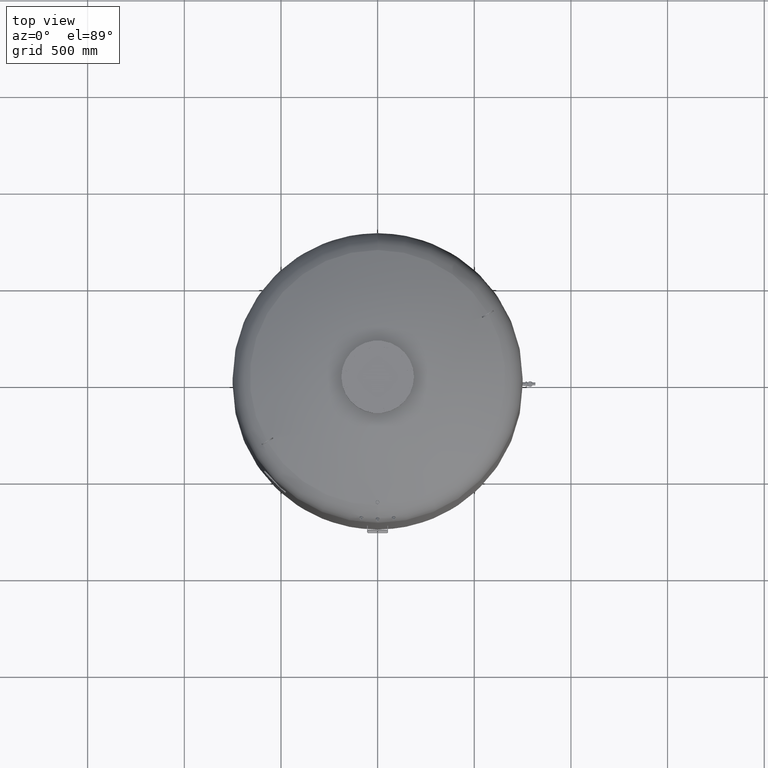
[diagram: clean part render]
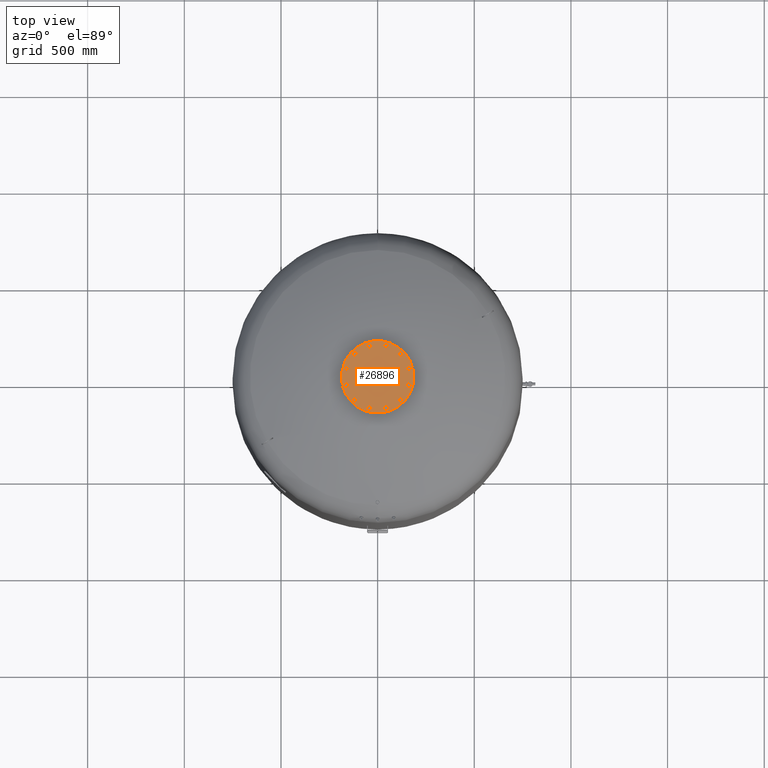
[diagram: same view with one face highlighted and labeled with its STEP entity id]
A machine part, top view. The second image highlights one B-rep face of the part: STEP entity #26896.
In plain terms, the highlighted planar face has unit normal (0, 0, 1).
Its self-contained STEP definition (entity closure, byte-faithful):
#19134=CARTESIAN_POINT('',(-187.500000000000000,0.0,3081.0));
#19135=VERTEX_POINT('',#19134);
#19151=CARTESIAN_POINT('',(187.500000000000000,-2.296137E-014,3081.0));
#19152=VERTEX_POINT('',#19151);
#19159=CARTESIAN_POINT('',(0.0,0.0,3081.0));
#19160=DIRECTION('',(0.0,0.0,-1.0));
#19161=DIRECTION('',(-1.0,0.0,0.0));
#19162=AXIS2_PLACEMENT_3D('',#19159,#19160,#19161);
#19163=CIRCLE('',#19162,187.500000000000000);
#19164=EDGE_CURVE('',#19152,#19135,#19163,.T.);
#24390=CARTESIAN_POINT('',(157.729139400922860,30.104983413641008,3081.0));
#24391=VERTEX_POINT('',#24390);
#24392=CARTESIAN_POINT('',(148.288440171855850,40.247625971983268,3081.0));
#24393=VERTEX_POINT('',#24392);
#24394=CARTESIAN_POINT('',(157.729139400922860,30.104983413641008,3081.0));
#24395=DIRECTION('',(-0.681323780155013,0.731982176419128,0.0));
#24396=VECTOR('',#24395,13.856406460551090);
#24397=LINE('',#24394,#24396);
#24398=EDGE_CURVE('',#24391,#24393,#24397,.T.);
#24430=CARTESIAN_POINT('',(171.233275132485970,33.209547496330110,3081.0));
#24431=VERTEX_POINT('',#24430);
#24432=CARTESIAN_POINT('',(171.233275132485970,33.209547496330110,3081.0));
#24433=DIRECTION('',(-0.974577049973894,-0.224052613607123,0.0));
#24434=VECTOR('',#24433,13.856406460551119);
#24435=LINE('',#24432,#24434);
#24436=EDGE_CURVE('',#24431,#24391,#24435,.T.);
#24461=CARTESIAN_POINT('',(175.296711634982050,46.456754137361422,3081.0));
#24462=VERTEX_POINT('',#24461);
#24463=CARTESIAN_POINT('',(175.296711634982050,46.456754137361422,3081.0));
#24464=DIRECTION('',(-0.293253269818881,-0.956034790026249,0.0));
#24465=VECTOR('',#24464,13.856406460551076);
#24466=LINE('',#24463,#24465);
#24467=EDGE_CURVE('',#24462,#24431,#24466,.T.);
#24492=CARTESIAN_POINT('',(152.351876674351930,53.494832613014587,3081.0));
#24493=VERTEX_POINT('',#24492);
#24494=CARTESIAN_POINT('',(148.288440171855850,40.247625971983268,3081.0));
#24495=DIRECTION('',(0.293253269818881,0.956034790026249,0.0));
#24496=VECTOR('',#24495,13.856406460551083);
#24497=LINE('',#24494,#24496);
#24498=EDGE_CURVE('',#24393,#24493,#24497,.T.);
#24523=CARTESIAN_POINT('',(165.856012405915040,56.599396695703689,3081.0));
#24524=VERTEX_POINT('',#24523);
#24525=CARTESIAN_POINT('',(152.351876674351930,53.494832613014587,3081.0));
#24526=DIRECTION('',(0.974577049973894,0.224052613607123,0.0));
#24527=VECTOR('',#24526,13.856406460551119);
#24528=LINE('',#24525,#24527);
#24529=EDGE_CURVE('',#24493,#24524,#24528,.T.);
#24554=CARTESIAN_POINT('',(165.856012405915040,56.599396695703689,3081.0));
#24555=DIRECTION('',(0.681323780155012,-0.731982176419129,0.0));
#24556=VECTOR('',#24555,13.856406460551096);
#24557=LINE('',#24554,#24556);
#24558=EDGE_CURVE('',#24524,#24462,#24557,.T.);
#24590=CARTESIAN_POINT('',(121.544949931435720,104.936250117183760,3081.0));
#24591=VERTEX_POINT('',#24590);
#24592=CARTESIAN_POINT('',(108.297743290404380,108.999686619679820,3081.0));
#24593=VERTEX_POINT('',#24592);
#24594=CARTESIAN_POINT('',(121.544949931435720,104.936250117183760,3081.0));
#24595=DIRECTION('',(-0.956034790026250,0.293253269818880,0.0));
#24596=VECTOR('',#24595,13.856406460551101);
#24597=LINE('',#24594,#24596);
#24598=EDGE_CURVE('',#24591,#24593,#24597,.T.);
#24630=CARTESIAN_POINT('',(131.687592489777960,114.376949346250780,3081.0));
#24631=VERTEX_POINT('',#24630);
#24632=CARTESIAN_POINT('',(131.687592489777960,114.376949346250780,3081.0));
#24633=DIRECTION('',(-0.731982176419127,-0.681323780155014,0.0));
#24634=VECTOR('',#24633,13.856406460551080);
#24635=LINE('',#24632,#24634);
#24636=EDGE_CURVE('',#24631,#24591,#24635,.T.);
#24661=CARTESIAN_POINT('',(128.583028407088880,127.881085077813880,3081.0));
#24662=VERTEX_POINT('',#24661);
#24663=CARTESIAN_POINT('',(128.583028407088880,127.881085077813880,3081.0));
#24664=DIRECTION('',(0.224052613607122,-0.974577049973894,0.0));
#24665=VECTOR('',#24664,13.856406460551099);
#24666=LINE('',#24663,#24665);
#24667=EDGE_CURVE('',#24662,#24631,#24666,.T.);
#24692=CARTESIAN_POINT('',(105.193179207715300,122.503822351242900,3081.0));
#24693=VERTEX_POINT('',#24692);
#24694=CARTESIAN_POINT('',(108.297743290404380,108.999686619679820,3081.0));
#24695=DIRECTION('',(-0.224052613607122,0.974577049973894,0.0));
#24696=VECTOR('',#24695,13.856406460551087);
#24697=LINE('',#24694,#24696);
#24698=EDGE_CURVE('',#24593,#24693,#24697,.T.);
#24723=CARTESIAN_POINT('',(115.335821766057560,131.944521580309950,3081.0));
#24724=VERTEX_POINT('',#24723);
#24725=CARTESIAN_POINT('',(105.193179207715300,122.503822351242900,3081.0));
#24726=DIRECTION('',(0.731982176419127,0.681323780155014,0.0));
#24727=VECTOR('',#24726,13.856406460551121);
#24728=LINE('',#24725,#24727);
#24729=EDGE_CURVE('',#24693,#24724,#24728,.T.);
#24754=CARTESIAN_POINT('',(115.335821766057560,131.944521580309950,3081.0));
#24755=DIRECTION('',(0.956034790026249,-0.293253269818881,0.0));
#24756=VECTOR('',#24755,13.856406460551076);
#24757=LINE('',#24754,#24756);
#24758=EDGE_CURVE('',#24724,#24662,#24757,.T.);
#24790=CARTESIAN_POINT('',(52.792889283739193,151.649933345076730,3081.0));
#24791=VERTEX_POINT('',#24790);
#24792=CARTESIAN_POINT('',(39.288753552176118,148.545369262387680,3081.0));
#24793=VERTEX_POINT('',#24792);
#24794=CARTESIAN_POINT('',(52.792889283739193,151.649933345076730,3081.0));
#24795=DIRECTION('',(-0.974577049973894,-0.224052613607120,0.0));
#24796=VECTOR('',#24795,13.856406460551073);
#24797=LINE('',#24794,#24796);
#24798=EDGE_CURVE('',#24791,#24793,#24797,.T.);
#24830=CARTESIAN_POINT('',(56.856325786235274,164.897139986108100,3081.0));
#24831=VERTEX_POINT('',#24830);
#24832=CARTESIAN_POINT('',(56.856325786235274,164.897139986108100,3081.0));
#24833=DIRECTION('',(-0.293253269818881,-0.956034790026249,0.0));
#24834=VECTOR('',#24833,13.856406460551133);
#24835=LINE('',#24832,#24834);
#24836=EDGE_CURVE('',#24831,#24791,#24835,.T.);
#24861=CARTESIAN_POINT('',(47.415626557168267,175.039782544450330,3081.0));
#24862=VERTEX_POINT('',#24861);
#24863=CARTESIAN_POINT('',(47.415626557168267,175.039782544450330,3081.0));
#24864=DIRECTION('',(0.681323780155014,-0.731982176419128,0.0));
#24865=VECTOR('',#24864,13.856406460551069);
#24866=LINE('',#24863,#24865);
#24867=EDGE_CURVE('',#24862,#24831,#24866,.T.);
#24892=CARTESIAN_POINT('',(29.848054323109103,158.688011820729910,3081.0));
#24893=VERTEX_POINT('',#24892);
#24894=CARTESIAN_POINT('',(39.288753552176118,148.545369262387680,3081.0));
#24895=DIRECTION('',(-0.681323780155014,0.731982176419127,0.0));
#24896=VECTOR('',#24895,13.856406460551076);
#24897=LINE('',#24894,#24896);
#24898=EDGE_CURVE('',#24793,#24893,#24897,.T.);
#24923=CARTESIAN_POINT('',(33.911490825605156,171.935218461761250,3081.0));
#24924=VERTEX_POINT('',#24923);
#24925=CARTESIAN_POINT('',(29.848054323109103,158.688011820729910,3081.0));
#24926=DIRECTION('',(0.293253269818879,0.956034790026250,0.0));
#24927=VECTOR('',#24926,13.856406460551097);
#24928=LINE('',#24925,#24927);
#24929=EDGE_CURVE('',#24893,#24924,#24928,.T.);
#24954=CARTESIAN_POINT('',(33.911490825605156,171.935218461761250,3081.0));
#24955=DIRECTION('',(0.974577049973894,0.224052613607121,0.0));
#24956=VECTOR('',#24955,13.856406460551113);
#24957=LINE('',#24954,#24956);
#24958=EDGE_CURVE('',#24924,#24862,#24957,.T.);
#24990=CARTESIAN_POINT('',(-30.104983413641008,157.729139400922860,3081.0));
#24991=VERTEX_POINT('',#24990);
#24992=CARTESIAN_POINT('',(-40.247625971983268,148.288440171855850,3081.0));
#24993=VERTEX_POINT('',#24992);
#24994=CARTESIAN_POINT('',(-30.104983413641008,157.729139400922860,3081.0));
#24995=DIRECTION('',(-0.731982176419128,-0.681323780155013,0.0));
#24996=VECTOR('',#24995,13.856406460551090);
#24997=LINE('',#24994,#24996);
#24998=EDGE_CURVE('',#24991,#24993,#24997,.T.);
#25030=CARTESIAN_POINT('',(-33.209547496330110,171.233275132485970,3081.0));
#25031=VERTEX_POINT('',#25030);
#25032=CARTESIAN_POINT('',(-33.209547496330110,171.233275132485970,3081.0));
#25033=DIRECTION('',(0.224052613607123,-0.974577049973894,0.0));
#25034=VECTOR('',#25033,13.856406460551119);
#25035=LINE('',#25032,#25034);
#25036=EDGE_CURVE('',#25031,#24991,#25035,.T.);
#25061=CARTESIAN_POINT('',(-46.456754137361422,175.296711634982050,3081.0));
#25062=VERTEX_POINT('',#25061);
#25063=CARTESIAN_POINT('',(-46.456754137361422,175.296711634982050,3081.0));
#25064=DIRECTION('',(0.956034790026249,-0.293253269818881,0.0));
#25065=VECTOR('',#25064,13.856406460551076);
#25066=LINE('',#25063,#25065);
#25067=EDGE_CURVE('',#25062,#25031,#25066,.T.);
#25092=CARTESIAN_POINT('',(-53.494832613014587,152.351876674351930,3081.0));
#25093=VERTEX_POINT('',#25092);
#25094=CARTESIAN_POINT('',(-40.247625971983268,148.288440171855850,3081.0));
#25095=DIRECTION('',(-0.956034790026249,0.293253269818881,0.0));
#25096=VECTOR('',#25095,13.856406460551083);
#25097=LINE('',#25094,#25096);
#25098=EDGE_CURVE('',#24993,#25093,#25097,.T.);
#25123=CARTESIAN_POINT('',(-56.599396695703689,165.856012405915040,3081.0));
#25124=VERTEX_POINT('',#25123);
#25125=CARTESIAN_POINT('',(-53.494832613014587,152.351876674351930,3081.0));
#25126=DIRECTION('',(-0.224052613607123,0.974577049973894,0.0));
#25127=VECTOR('',#25126,13.856406460551119);
#25128=LINE('',#25125,#25127);
#25129=EDGE_CURVE('',#25093,#25124,#25128,.T.);
#25154=CARTESIAN_POINT('',(-56.599396695703689,165.856012405915040,3081.0));
#25155=DIRECTION('',(0.731982176419129,0.681323780155012,0.0));
#25156=VECTOR('',#25155,13.856406460551096);
#25157=LINE('',#25154,#25156);
#25158=EDGE_CURVE('',#25124,#25062,#25157,.T.);
#25190=CARTESIAN_POINT('',(-104.936250117183700,121.544949931435750,3081.0));
#25191=VERTEX_POINT('',#25190);
#25192=CARTESIAN_POINT('',(-108.999686619679760,108.297743290404440,3081.0));
#25193=VERTEX_POINT('',#25192);
#25194=CARTESIAN_POINT('',(-104.936250117183700,121.544949931435750,3081.0));
#25195=DIRECTION('',(-0.293253269818880,-0.956034790026249,0.0));
#25196=VECTOR('',#25195,13.856406460551073);
#25197=LINE('',#25194,#25196);
#25198=EDGE_CURVE('',#25191,#25193,#25197,.T.);
#25230=CARTESIAN_POINT('',(-114.376949346250730,131.687592489778010,3081.0));
#25231=VERTEX_POINT('',#25230);
#25232=CARTESIAN_POINT('',(-114.376949346250730,131.687592489778010,3081.0));
#25233=DIRECTION('',(0.681323780155013,-0.731982176419128,0.0));
#25234=VECTOR('',#25233,13.856406460551101);
#25235=LINE('',#25232,#25234);
#25236=EDGE_CURVE('',#25231,#25191,#25235,.T.);
#25261=CARTESIAN_POINT('',(-127.881085077813810,128.583028407088930,3081.0));
#25262=VERTEX_POINT('',#25261);
#25263=CARTESIAN_POINT('',(-127.881085077813810,128.583028407088930,3081.0));
#25264=DIRECTION('',(0.974577049973894,0.224052613607122,0.0));
#25265=VECTOR('',#25264,13.856406460551087);
#25266=LINE('',#25263,#25265);
#25267=EDGE_CURVE('',#25262,#25231,#25266,.T.);
#25292=CARTESIAN_POINT('',(-122.503822351242850,105.193179207715360,3081.0));
#25293=VERTEX_POINT('',#25292);
#25294=CARTESIAN_POINT('',(-108.999686619679760,108.297743290404440,3081.0));
#25295=DIRECTION('',(-0.974577049973894,-0.224052613607122,0.0));
#25296=VECTOR('',#25295,13.856406460551087);
#25297=LINE('',#25294,#25296);
#25298=EDGE_CURVE('',#25193,#25293,#25297,.T.);
#25323=CARTESIAN_POINT('',(-131.944521580309900,115.335821766057620,3081.0));
#25324=VERTEX_POINT('',#25323);
#25325=CARTESIAN_POINT('',(-122.503822351242850,105.193179207715360,3081.0));
#25326=DIRECTION('',(-0.681323780155014,0.731982176419127,0.0));
#25327=VECTOR('',#25326,13.856406460551121);
#25328=LINE('',#25325,#25327);
#25329=EDGE_CURVE('',#25293,#25324,#25328,.T.);
#25354=CARTESIAN_POINT('',(-131.944521580309900,115.335821766057620,3081.0));
#25355=DIRECTION('',(0.293253269818882,0.956034790026249,0.0));
#25356=VECTOR('',#25355,13.856406460551081);
#25357=LINE('',#25354,#25356);
#25358=EDGE_CURVE('',#25324,#25262,#25357,.T.);
#25390=CARTESIAN_POINT('',(-151.649933345076730,52.792889283739214,3081.0));
#25391=VERTEX_POINT('',#25390);
#25392=CARTESIAN_POINT('',(-148.545369262387650,39.288753552176125,3081.0));
#25393=VERTEX_POINT('',#25392);
#25394=CARTESIAN_POINT('',(-151.649933345076730,52.792889283739214,3081.0));
#25395=DIRECTION('',(0.224052613607122,-0.974577049973894,0.0));
#25396=VECTOR('',#25395,13.856406460551092);
#25397=LINE('',#25394,#25396);
#25398=EDGE_CURVE('',#25391,#25393,#25397,.T.);
#25430=CARTESIAN_POINT('',(-164.897139986108100,56.856325786235296,3081.0));
#25431=VERTEX_POINT('',#25430);
#25432=CARTESIAN_POINT('',(-164.897139986108100,56.856325786235296,3081.0));
#25433=DIRECTION('',(0.956034790026249,-0.293253269818881,0.0));
#25434=VECTOR('',#25433,13.856406460551133);
#25435=LINE('',#25432,#25434);
#25436=EDGE_CURVE('',#25431,#25391,#25435,.T.);
#25461=CARTESIAN_POINT('',(-175.039782544450300,47.415626557168260,3081.0));
#25462=VERTEX_POINT('',#25461);
#25463=CARTESIAN_POINT('',(-175.039782544450300,47.415626557168260,3081.0));
#25464=DIRECTION('',(0.731982176419126,0.681323780155016,0.0));
#25465=VECTOR('',#25464,13.856406460551069);
#25466=LINE('',#25463,#25465);
#25467=EDGE_CURVE('',#25462,#25431,#25466,.T.);
#25492=CARTESIAN_POINT('',(-158.688011820729910,29.848054323109110,3081.0));
#25493=VERTEX_POINT('',#25492);
#25494=CARTESIAN_POINT('',(-148.545369262387650,39.288753552176125,3081.0));
#25495=DIRECTION('',(-0.731982176419128,-0.681323780155013,0.0));
#25496=VECTOR('',#25495,13.856406460551096);
#25497=LINE('',#25494,#25496);
#25498=EDGE_CURVE('',#25393,#25493,#25497,.T.);
#25523=CARTESIAN_POINT('',(-171.935218461761250,33.911490825605171,3081.0));
#25524=VERTEX_POINT('',#25523);
#25525=CARTESIAN_POINT('',(-158.688011820729910,29.848054323109110,3081.0));
#25526=DIRECTION('',(-0.956034790026250,0.293253269818880,0.0));
#25527=VECTOR('',#25526,13.856406460551101);
#25528=LINE('',#25525,#25527);
#25529=EDGE_CURVE('',#25493,#25524,#25528,.T.);
#25554=CARTESIAN_POINT('',(-171.935218461761250,33.911490825605171,3081.0));
#25555=DIRECTION('',(-0.224052613607120,0.974577049973894,0.0));
#25556=VECTOR('',#25555,13.856406460551087);
#25557=LINE('',#25554,#25556);
#25558=EDGE_CURVE('',#25524,#25462,#25557,.T.);
#25590=CARTESIAN_POINT('',(-157.729139400922860,-30.104983413640987,3081.0));
#25591=VERTEX_POINT('',#25590);
#25592=CARTESIAN_POINT('',(-148.288440171855850,-40.247625971983247,3081.0));
#25593=VERTEX_POINT('',#25592);
#25594=CARTESIAN_POINT('',(-157.729139400922860,-30.104983413640987,3081.0));
#25595=DIRECTION('',(0.681323780155013,-0.731982176419128,0.0));
#25596=VECTOR('',#25595,13.856406460551090);
#25597=LINE('',#25594,#25596);
#25598=EDGE_CURVE('',#25591,#25593,#25597,.T.);
#25630=CARTESIAN_POINT('',(-171.233275132486000,-33.209547496330096,3081.0));
#25631=VERTEX_POINT('',#25630);
#25632=CARTESIAN_POINT('',(-171.233275132486000,-33.209547496330096,3081.0));
#25633=DIRECTION('',(0.974577049973894,0.224052613607123,0.0));
#25634=VECTOR('',#25633,13.856406460551147);
#25635=LINE('',#25632,#25634);
#25636=EDGE_CURVE('',#25631,#25591,#25635,.T.);
#25661=CARTESIAN_POINT('',(-175.296711634982050,-46.456754137361401,3081.0));
#25662=VERTEX_POINT('',#25661);
#25663=CARTESIAN_POINT('',(-175.296711634982050,-46.456754137361401,3081.0));
#25664=DIRECTION('',(0.293253269818880,0.956034790026250,0.0));
#25665=VECTOR('',#25664,13.856406460551062);
#25666=LINE('',#25663,#25665);
#25667=EDGE_CURVE('',#25662,#25631,#25666,.T.);
#25692=CARTESIAN_POINT('',(-152.351876674351960,-53.494832613014580,3081.0));
#25693=VERTEX_POINT('',#25692);
#25694=CARTESIAN_POINT('',(-148.288440171855850,-40.247625971983247,3081.0));
#25695=DIRECTION('',(-0.293253269818883,-0.956034790026249,0.0));
#25696=VECTOR('',#25695,13.856406460551106);
#25697=LINE('',#25694,#25696);
#25698=EDGE_CURVE('',#25593,#25693,#25697,.T.);
#25723=CARTESIAN_POINT('',(-165.856012405915070,-56.599396695703646,3081.0));
#25724=VERTEX_POINT('',#25723);
#25725=CARTESIAN_POINT('',(-152.351876674351960,-53.494832613014580,3081.0));
#25726=DIRECTION('',(-0.974577049973894,-0.224052613607121,0.0));
#25727=VECTOR('',#25726,13.856406460551110);
#25728=LINE('',#25725,#25727);
#25729=EDGE_CURVE('',#25693,#25724,#25728,.T.);
#25754=CARTESIAN_POINT('',(-165.856012405915070,-56.599396695703646,3081.0));
#25755=DIRECTION('',(-0.681323780155012,0.731982176419129,0.0));
#25756=VECTOR('',#25755,13.856406460551062);
#25757=LINE('',#25754,#25756);
#25758=EDGE_CURVE('',#25724,#25662,#25757,.T.);
#25790=CARTESIAN_POINT('',(-121.544949931435750,-104.936250117183680,3081.0));
#25791=VERTEX_POINT('',#25790);
#25792=CARTESIAN_POINT('',(-108.297743290404440,-108.999686619679760,3081.0));
#25793=VERTEX_POINT('',#25792);
#25794=CARTESIAN_POINT('',(-121.544949931435750,-104.936250117183680,3081.0));
#25795=DIRECTION('',(0.956034790026249,-0.293253269818882,0.0));
#25796=VECTOR('',#25795,13.856406460551081);
#25797=LINE('',#25794,#25796);
#25798=EDGE_CURVE('',#25791,#25793,#25797,.T.);
#25830=CARTESIAN_POINT('',(-131.687592489778010,-114.376949346250730,3081.0));
#25831=VERTEX_POINT('',#25830);
#25832=CARTESIAN_POINT('',(-131.687592489778010,-114.376949346250730,3081.0));
#25833=DIRECTION('',(0.731982176419127,0.681323780155014,0.0));
#25834=VECTOR('',#25833,13.856406460551121);
#25835=LINE('',#25832,#25834);
#25836=EDGE_CURVE('',#25831,#25791,#25835,.T.);
#25861=CARTESIAN_POINT('',(-128.583028407088930,-127.881085077813790,3081.0));
#25862=VERTEX_POINT('',#25861);
#25863=CARTESIAN_POINT('',(-128.583028407088930,-127.881085077813790,3081.0));
#25864=DIRECTION('',(-0.224052613607122,0.974577049973894,0.0));
#25865=VECTOR('',#25864,13.856406460551071);
#25866=LINE('',#25863,#25865);
#25867=EDGE_CURVE('',#25862,#25831,#25866,.T.);
#25892=CARTESIAN_POINT('',(-105.193179207715360,-122.503822351242850,3081.0));
#25893=VERTEX_POINT('',#25892);
#25894=CARTESIAN_POINT('',(-108.297743290404440,-108.999686619679760,3081.0));
#25895=DIRECTION('',(0.224052613607122,-0.974577049973894,0.0));
#25896=VECTOR('',#25895,13.856406460551087);
#25897=LINE('',#25894,#25896);
#25898=EDGE_CURVE('',#25793,#25893,#25897,.T.);
#25923=CARTESIAN_POINT('',(-115.335821766057620,-131.944521580309900,3081.0));
#25924=VERTEX_POINT('',#25923);
#25925=CARTESIAN_POINT('',(-105.193179207715360,-122.503822351242850,3081.0));
#25926=DIRECTION('',(-0.731982176419127,-0.681323780155014,0.0));
#25927=VECTOR('',#25926,13.856406460551121);
#25928=LINE('',#25925,#25927);
#25929=EDGE_CURVE('',#25893,#25924,#25928,.T.);
#25954=CARTESIAN_POINT('',(-115.335821766057620,-131.944521580309900,3081.0));
#25955=DIRECTION('',(-0.956034790026249,0.293253269818883,0.0));
#25956=VECTOR('',#25955,13.856406460551085);
#25957=LINE('',#25954,#25956);
#25958=EDGE_CURVE('',#25924,#25862,#25957,.T.);
#25990=CARTESIAN_POINT('',(-52.792889283739228,-151.649933345076730,3081.0));
#25991=VERTEX_POINT('',#25990);
#25992=CARTESIAN_POINT('',(-39.288753552176132,-148.545369262387680,3081.0));
#25993=VERTEX_POINT('',#25992);
#25994=CARTESIAN_POINT('',(-52.792889283739228,-151.649933345076730,3081.0));
#25995=DIRECTION('',(0.974577049973894,0.224052613607120,0.0));
#25996=VECTOR('',#25995,13.856406460551094);
#25997=LINE('',#25994,#25996);
#25998=EDGE_CURVE('',#25991,#25993,#25997,.T.);
#26030=CARTESIAN_POINT('',(-56.856325786235296,-164.897139986108100,3081.0));
#26031=VERTEX_POINT('',#26030);
#26032=CARTESIAN_POINT('',(-56.856325786235296,-164.897139986108100,3081.0));
#26033=DIRECTION('',(0.293253269818880,0.956034790026250,0.0));
#26034=VECTOR('',#26033,13.856406460551129);
#26035=LINE('',#26032,#26034);
#26036=EDGE_CURVE('',#26031,#25991,#26035,.T.);
#26061=CARTESIAN_POINT('',(-47.415626557168281,-175.039782544450300,3081.0));
#26062=VERTEX_POINT('',#26061);
#26063=CARTESIAN_POINT('',(-47.415626557168281,-175.039782544450300,3081.0));
#26064=DIRECTION('',(-0.681323780155015,0.731982176419126,0.0));
#26065=VECTOR('',#26064,13.856406460551055);
#26066=LINE('',#26063,#26065);
#26067=EDGE_CURVE('',#26062,#26031,#26066,.T.);
#26092=CARTESIAN_POINT('',(-29.848054323109121,-158.688011820729910,3081.0));
#26093=VERTEX_POINT('',#26092);
#26094=CARTESIAN_POINT('',(-39.288753552176132,-148.545369262387680,3081.0));
#26095=DIRECTION('',(0.681323780155014,-0.731982176419127,0.0));
#26096=VECTOR('',#26095,13.856406460551073);
#26097=LINE('',#26094,#26096);
#26098=EDGE_CURVE('',#25993,#26093,#26097,.T.);
#26123=CARTESIAN_POINT('',(-33.911490825605199,-171.935218461761280,3081.0));
#26124=VERTEX_POINT('',#26123);
#26125=CARTESIAN_POINT('',(-29.848054323109121,-158.688011820729910,3081.0));
#26126=DIRECTION('',(-0.293253269818880,-0.956034790026249,0.0));
#26127=VECTOR('',#26126,13.856406460551133);
#26128=LINE('',#26125,#26127);
#26129=EDGE_CURVE('',#26093,#26124,#26128,.T.);
#26154=CARTESIAN_POINT('',(-33.911490825605199,-171.935218461761280,3081.0));
#26155=DIRECTION('',(-0.974577049973895,-0.224052613607118,0.0));
#26156=VECTOR('',#26155,13.856406460551074);
#26157=LINE('',#26154,#26156);
#26158=EDGE_CURVE('',#26124,#26062,#26157,.T.);
#26190=CARTESIAN_POINT('',(30.104983413640952,-157.729139400922890,3081.0));
#26191=VERTEX_POINT('',#26190);
#26192=CARTESIAN_POINT('',(40.247625971983211,-148.288440171855880,3081.0));
#26193=VERTEX_POINT('',#26192);
#26194=CARTESIAN_POINT('',(30.104983413640952,-157.729139400922890,3081.0));
#26195=DIRECTION('',(0.731982176419128,0.681323780155013,0.0));
#26196=VECTOR('',#26195,13.856406460551090);
#26197=LINE('',#26194,#26196);
#26198=EDGE_CURVE('',#26191,#26193,#26197,.T.);
#26230=CARTESIAN_POINT('',(33.209547496330039,-171.233275132486000,3081.0));
#26231=VERTEX_POINT('',#26230);
#26232=CARTESIAN_POINT('',(33.209547496330039,-171.233275132486000,3081.0));
#26233=DIRECTION('',(-0.224052613607122,0.974577049973894,0.0));
#26234=VECTOR('',#26233,13.856406460551115);
#26235=LINE('',#26232,#26234);
#26236=EDGE_CURVE('',#26231,#26191,#26235,.T.);
#26261=CARTESIAN_POINT('',(46.456754137361351,-175.296711634982070,3081.0));
#26262=VERTEX_POINT('',#26261);
#26263=CARTESIAN_POINT('',(46.456754137361351,-175.296711634982070,3081.0));
#26264=DIRECTION('',(-0.956034790026249,0.293253269818881,0.0));
#26265=VECTOR('',#26264,13.856406460551076);
#26266=LINE('',#26263,#26265);
#26267=EDGE_CURVE('',#26262,#26231,#26266,.T.);
#26292=CARTESIAN_POINT('',(53.494832613014523,-152.351876674351960,3081.0));
#26293=VERTEX_POINT('',#26292);
#26294=CARTESIAN_POINT('',(40.247625971983211,-148.288440171855880,3081.0));
#26295=DIRECTION('',(0.956034790026249,-0.293253269818881,0.0));
#26296=VECTOR('',#26295,13.856406460551076);
#26297=LINE('',#26294,#26296);
#26298=EDGE_CURVE('',#26193,#26293,#26297,.T.);
#26323=CARTESIAN_POINT('',(56.599396695703625,-165.856012405915070,3081.0));
#26324=VERTEX_POINT('',#26323);
#26325=CARTESIAN_POINT('',(53.494832613014523,-152.351876674351960,3081.0));
#26326=DIRECTION('',(0.224052613607123,-0.974577049973894,0.0));
#26327=VECTOR('',#26326,13.856406460551119);
#26328=LINE('',#26325,#26327);
#26329=EDGE_CURVE('',#26293,#26324,#26328,.T.);
#26354=CARTESIAN_POINT('',(56.599396695703625,-165.856012405915070,3081.0));
#26355=DIRECTION('',(-0.731982176419129,-0.681323780155012,0.0));
#26356=VECTOR('',#26355,13.856406460551101);
#26357=LINE('',#26354,#26356);
#26358=EDGE_CURVE('',#26324,#26262,#26357,.T.);
#26390=CARTESIAN_POINT('',(104.936250117183660,-121.544949931435800,3081.0));
#26391=VERTEX_POINT('',#26390);
#26392=CARTESIAN_POINT('',(108.999686619679750,-108.297743290404470,3081.0));
#26393=VERTEX_POINT('',#26392);
#26394=CARTESIAN_POINT('',(104.936250117183660,-121.544949931435800,3081.0));
#26395=DIRECTION('',(0.293253269818882,0.956034790026249,0.0));
#26396=VECTOR('',#26395,13.856406460551094);
#26397=LINE('',#26394,#26396);
#26398=EDGE_CURVE('',#26391,#26393,#26397,.T.);
#26430=CARTESIAN_POINT('',(114.376949346250710,-131.687592489778040,3081.0));
#26431=VERTEX_POINT('',#26430);
#26432=CARTESIAN_POINT('',(114.376949346250710,-131.687592489778040,3081.0));
#26433=DIRECTION('',(-0.681323780155015,0.731982176419126,0.0));
#26434=VECTOR('',#26433,13.856406460551110);
#26435=LINE('',#26432,#26434);
#26436=EDGE_CURVE('',#26431,#26391,#26435,.T.);
#26461=CARTESIAN_POINT('',(127.881085077813760,-128.583028407088960,3081.0));
#26462=VERTEX_POINT('',#26461);
#26463=CARTESIAN_POINT('',(127.881085077813760,-128.583028407088960,3081.0));
#26464=DIRECTION('',(-0.974577049973894,-0.224052613607122,0.0));
#26465=VECTOR('',#26464,13.856406460551058);
#26466=LINE('',#26463,#26465);
#26467=EDGE_CURVE('',#26462,#26431,#26466,.T.);
#26492=CARTESIAN_POINT('',(122.503822351242830,-105.193179207715390,3081.0));
#26493=VERTEX_POINT('',#26492);
#26494=CARTESIAN_POINT('',(108.999686619679750,-108.297743290404470,3081.0));
#26495=DIRECTION('',(0.974577049973894,0.224052613607122,0.0));
#26496=VECTOR('',#26495,13.856406460551087);
#26497=LINE('',#26494,#26496);
#26498=EDGE_CURVE('',#26393,#26493,#26497,.T.);
#26523=CARTESIAN_POINT('',(131.944521580309870,-115.335821766057650,3081.0));
#26524=VERTEX_POINT('',#26523);
#26525=CARTESIAN_POINT('',(122.503822351242830,-105.193179207715390,3081.0));
#26526=DIRECTION('',(0.681323780155014,-0.731982176419127,0.0));
#26527=VECTOR('',#26526,13.856406460551110);
#26528=LINE('',#26525,#26527);
#26529=EDGE_CURVE('',#26493,#26524,#26528,.T.);
#26554=CARTESIAN_POINT('',(131.944521580309870,-115.335821766057650,3081.0));
#26555=DIRECTION('',(-0.293253269818883,-0.956034790026249,0.0));
#26556=VECTOR('',#26555,13.856406460551085);
#26557=LINE('',#26554,#26556);
#26558=EDGE_CURVE('',#26524,#26462,#26557,.T.);
#26590=CARTESIAN_POINT('',(151.649933345076730,-52.792889283739228,3081.0));
#26591=VERTEX_POINT('',#26590);
#26592=CARTESIAN_POINT('',(148.545369262387650,-39.288753552176139,3081.0));
#26593=VERTEX_POINT('',#26592);
#26594=CARTESIAN_POINT('',(151.649933345076730,-52.792889283739228,3081.0));
#26595=DIRECTION('',(-0.224052613607122,0.974577049973894,0.0));
#26596=VECTOR('',#26595,13.856406460551092);
#26597=LINE('',#26594,#26596);
#26598=EDGE_CURVE('',#26591,#26593,#26597,.T.);
#26630=CARTESIAN_POINT('',(164.897139986108070,-56.856325786235303,3081.0));
#26631=VERTEX_POINT('',#26630);
#26632=CARTESIAN_POINT('',(164.897139986108070,-56.856325786235303,3081.0));
#26633=DIRECTION('',(-0.956034790026249,0.293253269818881,0.0));
#26634=VECTOR('',#26633,13.856406460551105);
#26635=LINE('',#26632,#26634);
#26636=EDGE_CURVE('',#26631,#26591,#26635,.T.);
#26661=CARTESIAN_POINT('',(175.039782544450300,-47.415626557168295,3081.0));
#26662=VERTEX_POINT('',#26661);
#26663=CARTESIAN_POINT('',(175.039782544450300,-47.415626557168295,3081.0));
#26664=DIRECTION('',(-0.731982176419128,-0.681323780155014,0.0));
#26665=VECTOR('',#26664,13.856406460551069);
#26666=LINE('',#26663,#26665);
#26667=EDGE_CURVE('',#26662,#26631,#26666,.T.);
#26692=CARTESIAN_POINT('',(158.688011820729910,-29.848054323109132,3081.0));
#26693=VERTEX_POINT('',#26692);
#26694=CARTESIAN_POINT('',(148.545369262387650,-39.288753552176139,3081.0));
#26695=DIRECTION('',(0.731982176419128,0.681323780155013,0.0));
#26696=VECTOR('',#26695,13.856406460551090);
#26697=LINE('',#26694,#26696);
#26698=EDGE_CURVE('',#26593,#26693,#26697,.T.);
#26723=CARTESIAN_POINT('',(171.935218461761250,-33.911490825605206,3081.0));
#26724=VERTEX_POINT('',#26723);
#26725=CARTESIAN_POINT('',(158.688011820729910,-29.848054323109132,3081.0));
#26726=DIRECTION('',(0.956034790026249,-0.293253269818881,0.0));
#26727=VECTOR('',#26726,13.856406460551105);
#26728=LINE('',#26725,#26727);
#26729=EDGE_CURVE('',#26693,#26724,#26728,.T.);
#26754=CARTESIAN_POINT('',(171.935218461761250,-33.911490825605206,3081.0));
#26755=DIRECTION('',(0.224052613607120,-0.974577049973894,0.0));
#26756=VECTOR('',#26755,13.856406460551087);
#26757=LINE('',#26754,#26756);
#26758=EDGE_CURVE('',#26724,#26662,#26757,.T.);
#26785=CARTESIAN_POINT('',(-93.750000000000000,-7.888609E-031,3081.0));
#26786=DIRECTION('',(0.0,0.0,1.0));
#26787=DIRECTION('',(0.0,1.0,0.0));
#26788=AXIS2_PLACEMENT_3D('',#26785,#26786,#26787);
#26789=PLANE('',#26788);
#26790=CARTESIAN_POINT('',(0.0,0.0,3081.0));
#26791=DIRECTION('',(0.0,0.0,-1.0));
#26792=DIRECTION('',(-1.0,0.0,0.0));
#26793=AXIS2_PLACEMENT_3D('',#26790,#26791,#26792);
#26794=CIRCLE('',#26793,187.500000000000000);
#26795=EDGE_CURVE('',#19135,#19152,#26794,.T.);
#26796=ORIENTED_EDGE('',*,*,#26795,.F.);
#26797=ORIENTED_EDGE('',*,*,#19164,.F.);
#26798=EDGE_LOOP('',(#26796,#26797));
#26799=FACE_OUTER_BOUND('',#26798,.T.);
#26800=ORIENTED_EDGE('',*,*,#24398,.T.);
#26801=ORIENTED_EDGE('',*,*,#24498,.T.);
#26802=ORIENTED_EDGE('',*,*,#24529,.T.);
#26803=ORIENTED_EDGE('',*,*,#24558,.T.);
#26804=ORIENTED_EDGE('',*,*,#24467,.T.);
#26805=ORIENTED_EDGE('',*,*,#24436,.T.);
#26806=EDGE_LOOP('',(#26800,#26801,#26802,#26803,#26804,#26805));
#26807=FACE_BOUND('',#26806,.T.);
#26808=ORIENTED_EDGE('',*,*,#24598,.T.);
#26809=ORIENTED_EDGE('',*,*,#24698,.T.);
#26810=ORIENTED_EDGE('',*,*,#24729,.T.);
#26811=ORIENTED_EDGE('',*,*,#24758,.T.);
#26812=ORIENTED_EDGE('',*,*,#24667,.T.);
#26813=ORIENTED_EDGE('',*,*,#24636,.T.);
#26814=EDGE_LOOP('',(#26808,#26809,#26810,#26811,#26812,#26813));
#26815=FACE_BOUND('',#26814,.T.);
#26816=ORIENTED_EDGE('',*,*,#24798,.T.);
#26817=ORIENTED_EDGE('',*,*,#24898,.T.);
#26818=ORIENTED_EDGE('',*,*,#24929,.T.);
#26819=ORIENTED_EDGE('',*,*,#24958,.T.);
#26820=ORIENTED_EDGE('',*,*,#24867,.T.);
#26821=ORIENTED_EDGE('',*,*,#24836,.T.);
#26822=EDGE_LOOP('',(#26816,#26817,#26818,#26819,#26820,#26821));
#26823=FACE_BOUND('',#26822,.T.);
#26824=ORIENTED_EDGE('',*,*,#24998,.T.);
#26825=ORIENTED_EDGE('',*,*,#25098,.T.);
#26826=ORIENTED_EDGE('',*,*,#25129,.T.);
#26827=ORIENTED_EDGE('',*,*,#25158,.T.);
#26828=ORIENTED_EDGE('',*,*,#25067,.T.);
#26829=ORIENTED_EDGE('',*,*,#25036,.T.);
#26830=EDGE_LOOP('',(#26824,#26825,#26826,#26827,#26828,#26829));
#26831=FACE_BOUND('',#26830,.T.);
#26832=ORIENTED_EDGE('',*,*,#25198,.T.);
#26833=ORIENTED_EDGE('',*,*,#25298,.T.);
#26834=ORIENTED_EDGE('',*,*,#25329,.T.);
#26835=ORIENTED_EDGE('',*,*,#25358,.T.);
#26836=ORIENTED_EDGE('',*,*,#25267,.T.);
#26837=ORIENTED_EDGE('',*,*,#25236,.T.);
#26838=EDGE_LOOP('',(#26832,#26833,#26834,#26835,#26836,#26837));
#26839=FACE_BOUND('',#26838,.T.);
#26840=ORIENTED_EDGE('',*,*,#25398,.T.);
#26841=ORIENTED_EDGE('',*,*,#25498,.T.);
#26842=ORIENTED_EDGE('',*,*,#25529,.T.);
#26843=ORIENTED_EDGE('',*,*,#25558,.T.);
#26844=ORIENTED_EDGE('',*,*,#25467,.T.);
#26845=ORIENTED_EDGE('',*,*,#25436,.T.);
#26846=EDGE_LOOP('',(#26840,#26841,#26842,#26843,#26844,#26845));
#26847=FACE_BOUND('',#26846,.T.);
#26848=ORIENTED_EDGE('',*,*,#25598,.T.);
#26849=ORIENTED_EDGE('',*,*,#25698,.T.);
#26850=ORIENTED_EDGE('',*,*,#25729,.T.);
#26851=ORIENTED_EDGE('',*,*,#25758,.T.);
#26852=ORIENTED_EDGE('',*,*,#25667,.T.);
#26853=ORIENTED_EDGE('',*,*,#25636,.T.);
#26854=EDGE_LOOP('',(#26848,#26849,#26850,#26851,#26852,#26853));
#26855=FACE_BOUND('',#26854,.T.);
#26856=ORIENTED_EDGE('',*,*,#25798,.T.);
#26857=ORIENTED_EDGE('',*,*,#25898,.T.);
#26858=ORIENTED_EDGE('',*,*,#25929,.T.);
#26859=ORIENTED_EDGE('',*,*,#25958,.T.);
#26860=ORIENTED_EDGE('',*,*,#25867,.T.);
#26861=ORIENTED_EDGE('',*,*,#25836,.T.);
#26862=EDGE_LOOP('',(#26856,#26857,#26858,#26859,#26860,#26861));
#26863=FACE_BOUND('',#26862,.T.);
#26864=ORIENTED_EDGE('',*,*,#25998,.T.);
#26865=ORIENTED_EDGE('',*,*,#26098,.T.);
#26866=ORIENTED_EDGE('',*,*,#26129,.T.);
#26867=ORIENTED_EDGE('',*,*,#26158,.T.);
#26868=ORIENTED_EDGE('',*,*,#26067,.T.);
#26869=ORIENTED_EDGE('',*,*,#26036,.T.);
#26870=EDGE_LOOP('',(#26864,#26865,#26866,#26867,#26868,#26869));
#26871=FACE_BOUND('',#26870,.T.);
#26872=ORIENTED_EDGE('',*,*,#26198,.T.);
#26873=ORIENTED_EDGE('',*,*,#26298,.T.);
#26874=ORIENTED_EDGE('',*,*,#26329,.T.);
#26875=ORIENTED_EDGE('',*,*,#26358,.T.);
#26876=ORIENTED_EDGE('',*,*,#26267,.T.);
#26877=ORIENTED_EDGE('',*,*,#26236,.T.);
#26878=EDGE_LOOP('',(#26872,#26873,#26874,#26875,#26876,#26877));
#26879=FACE_BOUND('',#26878,.T.);
#26880=ORIENTED_EDGE('',*,*,#26398,.T.);
#26881=ORIENTED_EDGE('',*,*,#26498,.T.);
#26882=ORIENTED_EDGE('',*,*,#26529,.T.);
#26883=ORIENTED_EDGE('',*,*,#26558,.T.);
#26884=ORIENTED_EDGE('',*,*,#26467,.T.);
#26885=ORIENTED_EDGE('',*,*,#26436,.T.);
#26886=EDGE_LOOP('',(#26880,#26881,#26882,#26883,#26884,#26885));
#26887=FACE_BOUND('',#26886,.T.);
#26888=ORIENTED_EDGE('',*,*,#26598,.T.);
#26889=ORIENTED_EDGE('',*,*,#26698,.T.);
#26890=ORIENTED_EDGE('',*,*,#26729,.T.);
#26891=ORIENTED_EDGE('',*,*,#26758,.T.);
#26892=ORIENTED_EDGE('',*,*,#26667,.T.);
#26893=ORIENTED_EDGE('',*,*,#26636,.T.);
#26894=EDGE_LOOP('',(#26888,#26889,#26890,#26891,#26892,#26893));
#26895=FACE_BOUND('',#26894,.T.);
#26896=ADVANCED_FACE('',(#26799,#26807,#26815,#26823,#26831,#26839,#26847,#26855,#26863,#26871,#26879,#26887,#26895),#26789,.T.);